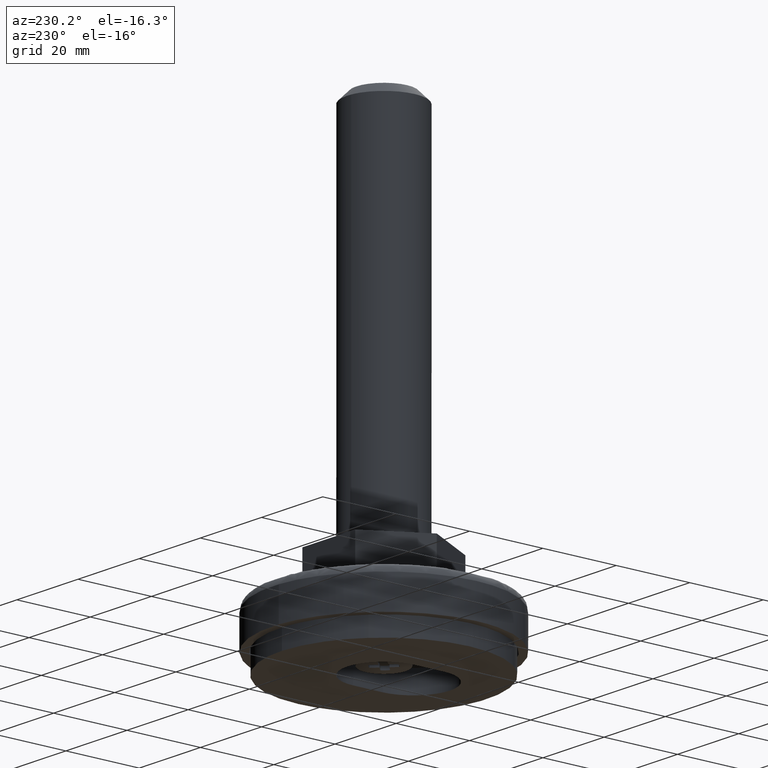
[diagram: clean part render]
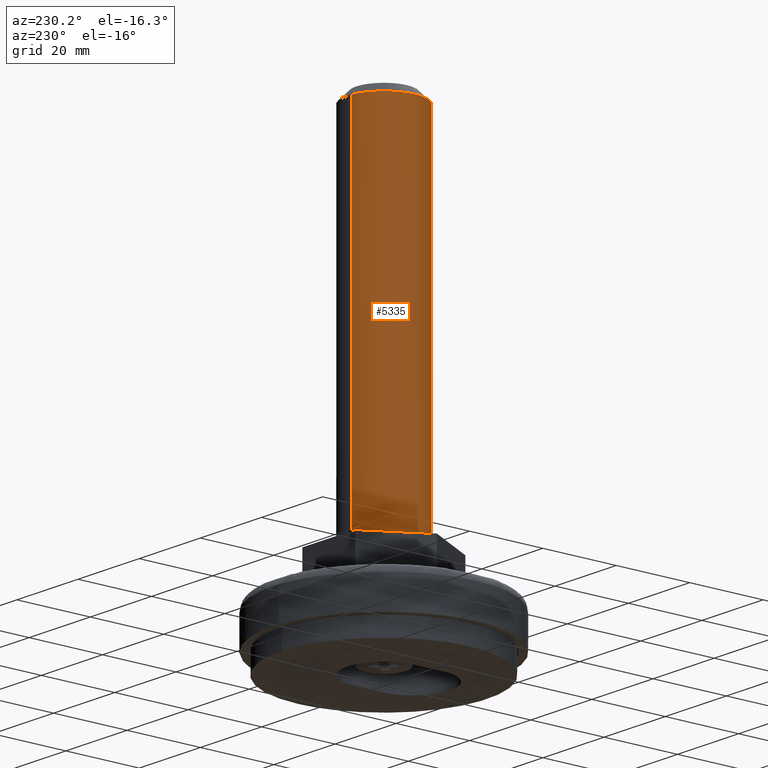
[diagram: same view with one face highlighted and labeled with its STEP entity id]
A machine part, auxiliary view. The second image highlights one B-rep face of the part: STEP entity #5335.
In plain terms, the highlighted face is a freeform B-spline surface patch.
Its self-contained STEP definition (entity closure, byte-faithful):
#5159=CARTESIAN_POINT('',(-1.241280020895585,9.922662138243215,124.500000000000000));
#5160=VERTEX_POINT('',#5159);
#5176=CARTESIAN_POINT('',(-10.0,0.0,124.500000000000000));
#5177=VERTEX_POINT('',#5176);
#5178=CARTESIAN_POINT('',(-10.0,0.0,124.500000000000000));
#5179=CARTESIAN_POINT('',(-10.0,8.826986001327846,124.500000000000000));
#5180=CARTESIAN_POINT('',(-1.241280020895586,9.922662138243215,124.500000000000030));
#5188=(BOUNDED_CURVE()B_SPLINE_CURVE(2,(#5178,#5179,#5180),.UNSPECIFIED.,.F.,.U.)B_SPLINE_CURVE_WITH_KNOTS((3,3),(0.500000000000000,0.728526071025992),.UNSPECIFIED.)CURVE()GEOMETRIC_REPRESENTATION_ITEM()RATIONAL_B_SPLINE_CURVE((1.0,0.732265053897623,0.954005430268301))REPRESENTATION_ITEM(''));
#5189=EDGE_CURVE('',#5177,#5160,#5188,.T.);
#5191=CARTESIAN_POINT('',(0.087265355127119,-9.999619230640459,124.500000000000000));
#5192=VERTEX_POINT('',#5191);
#5193=CARTESIAN_POINT('',(0.087265355127119,-9.999619230640459,124.500000000000000));
#5194=CARTESIAN_POINT('',(0.043633508350404,-10.0,124.499999999999960));
#5195=CARTESIAN_POINT('',(0.0,-10.0,124.500000000000000));
#5196=CARTESIAN_POINT('',(-10.000000000000002,-10.000000000000002,124.499999999999990));
#5197=CARTESIAN_POINT('',(-10.0,0.0,124.500000000000000));
#5205=(BOUNDED_CURVE()B_SPLINE_CURVE(2,(#5193,#5194,#5195,#5196,#5197),.UNSPECIFIED.,.F.,.U.)B_SPLINE_CURVE_WITH_KNOTS((3,2,3),(0.248460105659962,0.250000000000000,0.500000000000000),.UNSPECIFIED.)CURVE()GEOMETRIC_REPRESENTATION_ITEM()RATIONAL_B_SPLINE_CURVE((0.996414028088716,0.998195901560454,1.0,0.707106781186548,1.0))REPRESENTATION_ITEM(''));
#5206=EDGE_CURVE('',#5192,#5177,#5205,.T.);
#5269=CARTESIAN_POINT('',(-1.241280020798293,9.922662138255385,24.562500000000000));
#5270=CARTESIAN_POINT('',(-10.077328305024446,8.817312581332210,24.562499999999996));
#5271=CARTESIAN_POINT('',(-9.999619230641709,-0.087265354983739,24.562499999999989));
#5272=CARTESIAN_POINT('',(-9.912353875657971,-10.086884585625448,24.562499999999996));
#5273=CARTESIAN_POINT('',(0.087265354983739,-9.999619230641709,24.562499999999989));
#5274=CARTESIAN_POINT('',(-1.241280020798293,9.922662138255385,126.998437499999980));
#5275=CARTESIAN_POINT('',(-10.077328305024446,8.817312581332210,126.998437499999990));
#5276=CARTESIAN_POINT('',(-9.999619230641709,-0.087265354983739,126.998437499999990));
#5277=CARTESIAN_POINT('',(-9.912353875657971,-10.086884585625448,126.998437499999990));
#5278=CARTESIAN_POINT('',(0.087265354983739,-9.999619230641709,126.998437499999990));
#5286=(BOUNDED_SURFACE()B_SPLINE_SURFACE(2,1,((#5269,#5274),(#5270,#5275),(#5271,#5276),(#5272,#5277),(#5273,#5278)),.UNSPECIFIED.,.F.,.F.,.U.)B_SPLINE_SURFACE_WITH_KNOTS((3,2,3),(2,2),(0.0,15.243059095329890,31.811601590253691),(0.0,102.435937499999990),.UNSPECIFIED.)GEOMETRIC_REPRESENTATION_ITEM()RATIONAL_B_SPLINE_SURFACE(((0.956886118190660,0.956886118190660),(0.730538238691624,0.730538238691624),(1.0,1.0),(0.707106781186548,0.707106781186548),(1.0,1.0)))REPRESENTATION_ITEM('')SURFACE());
#5287=CARTESIAN_POINT('',(-1.241280020946220,9.922662138236882,27.0));
#5288=VERTEX_POINT('',#5287);
#5289=CARTESIAN_POINT('',(-10.0,0.0,27.0));
#5290=VERTEX_POINT('',#5289);
#5291=CARTESIAN_POINT('',(-1.241280020946220,9.922662138236882,26.999999999999996));
#5292=CARTESIAN_POINT('',(-10.0,8.826986001237051,27.000000000000004));
#5293=CARTESIAN_POINT('',(-10.0,0.0,27.0));
#5301=(BOUNDED_CURVE()B_SPLINE_CURVE(2,(#5291,#5292,#5293),.UNSPECIFIED.,.F.,.U.)B_SPLINE_CURVE_WITH_KNOTS((3,3),(0.271473928975729,0.500000000000000),.UNSPECIFIED.)CURVE()GEOMETRIC_REPRESENTATION_ITEM()RATIONAL_B_SPLINE_CURVE((0.954005430264961,0.732265053899639,1.0))REPRESENTATION_ITEM(''));
#5302=EDGE_CURVE('',#5288,#5290,#5301,.T.);
#5303=ORIENTED_EDGE('',*,*,#5302,.T.);
#5304=CARTESIAN_POINT('',(0.087265355144223,-9.999619230640310,27.0));
#5305=VERTEX_POINT('',#5304);
#5306=CARTESIAN_POINT('',(-10.0,0.0,27.0));
#5307=CARTESIAN_POINT('',(-10.000000000000002,-10.000000000000002,27.000000000000011));
#5308=CARTESIAN_POINT('',(0.0,-10.0,27.0));
#5309=CARTESIAN_POINT('',(0.043633508367480,-10.000000000000002,27.000000000000007));
#5310=CARTESIAN_POINT('',(0.087265355144223,-9.999619230640310,26.999999999999996));
#5318=(BOUNDED_CURVE()B_SPLINE_CURVE(2,(#5306,#5307,#5308,#5309,#5310),.UNSPECIFIED.,.F.,.U.)B_SPLINE_CURVE_WITH_KNOTS((3,2,3),(0.500000000000000,0.750000000000000,0.751539894340640),.UNSPECIFIED.)CURVE()GEOMETRIC_REPRESENTATION_ITEM()RATIONAL_B_SPLINE_CURVE((1.0,0.707106781186548,1.0,0.998195901559749,0.996414028087323))REPRESENTATION_ITEM(''));
#5319=EDGE_CURVE('',#5290,#5305,#5318,.T.);
#5320=ORIENTED_EDGE('',*,*,#5319,.T.);
#5321=CARTESIAN_POINT('',(0.087265355144223,-9.999619230640310,27.0));
#5322=CARTESIAN_POINT('',(0.087265355127119,-9.999619230640459,124.500000000000000));
#5323=QUASI_UNIFORM_CURVE('',1,(#5321,#5322),.UNSPECIFIED.,.F.,.U.);
#5324=EDGE_CURVE('',#5305,#5192,#5323,.T.);
#5325=ORIENTED_EDGE('',*,*,#5324,.T.);
#5326=ORIENTED_EDGE('',*,*,#5206,.T.);
#5327=ORIENTED_EDGE('',*,*,#5189,.T.);
#5328=CARTESIAN_POINT('',(-1.241280020946220,9.922662138236882,27.0));
#5329=CARTESIAN_POINT('',(-1.241280020895585,9.922662138243215,124.500000000000000));
#5330=QUASI_UNIFORM_CURVE('',1,(#5328,#5329),.UNSPECIFIED.,.F.,.U.);
#5331=EDGE_CURVE('',#5288,#5160,#5330,.T.);
#5332=ORIENTED_EDGE('',*,*,#5331,.F.);
#5333=EDGE_LOOP('',(#5303,#5320,#5325,#5326,#5327,#5332));
#5334=FACE_OUTER_BOUND('',#5333,.T.);
#5335=ADVANCED_FACE('',(#5334),#5286,.T.);